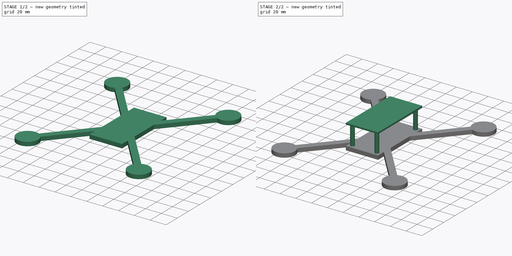
[diagram: build sequence overview — one tinted view per stage of 2, left to right]
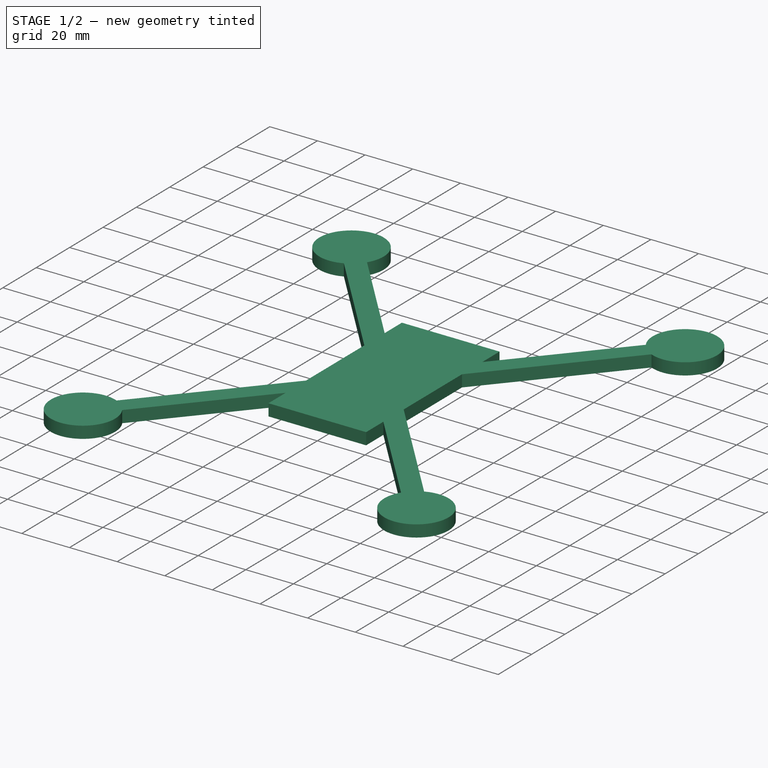
[diagram: stage 1 of 2 — iso view after this stage's code; geometry added in this stage tinted green]
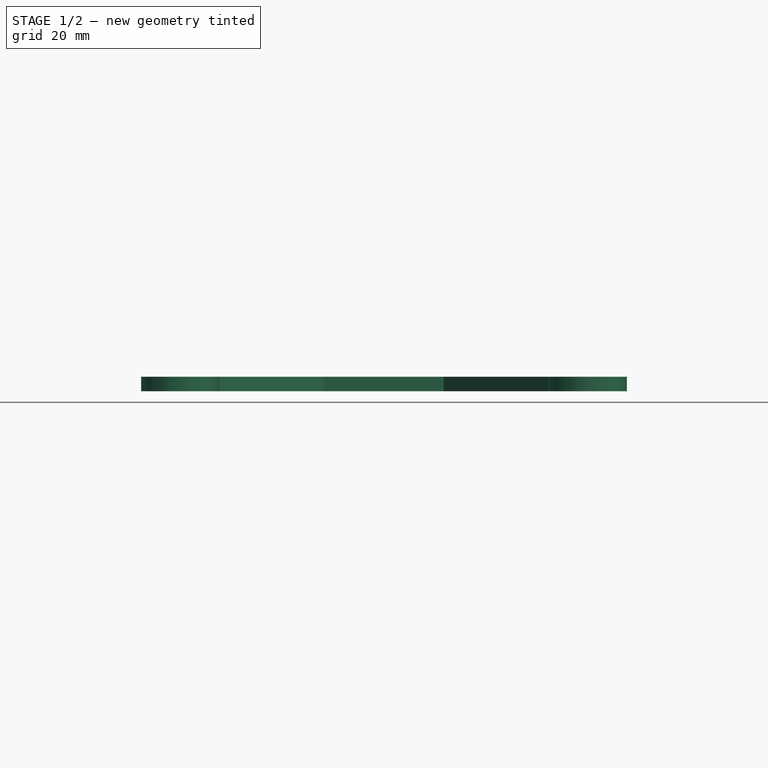
[diagram: stage 1 of 2 — front view after this stage's code; geometry added in this stage tinted green]
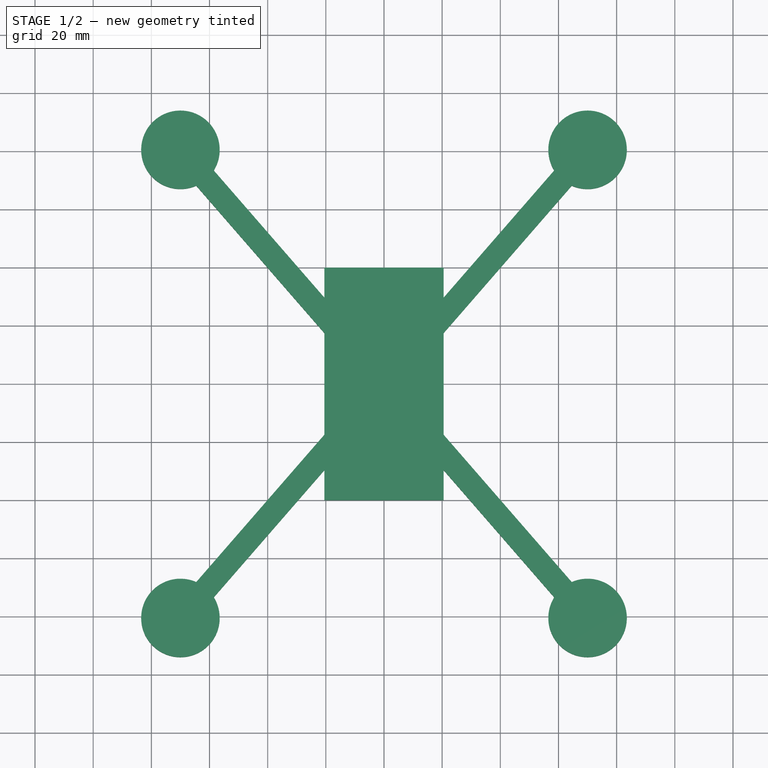
[diagram: stage 1 of 2 — top view after this stage's code; geometry added in this stage tinted green]
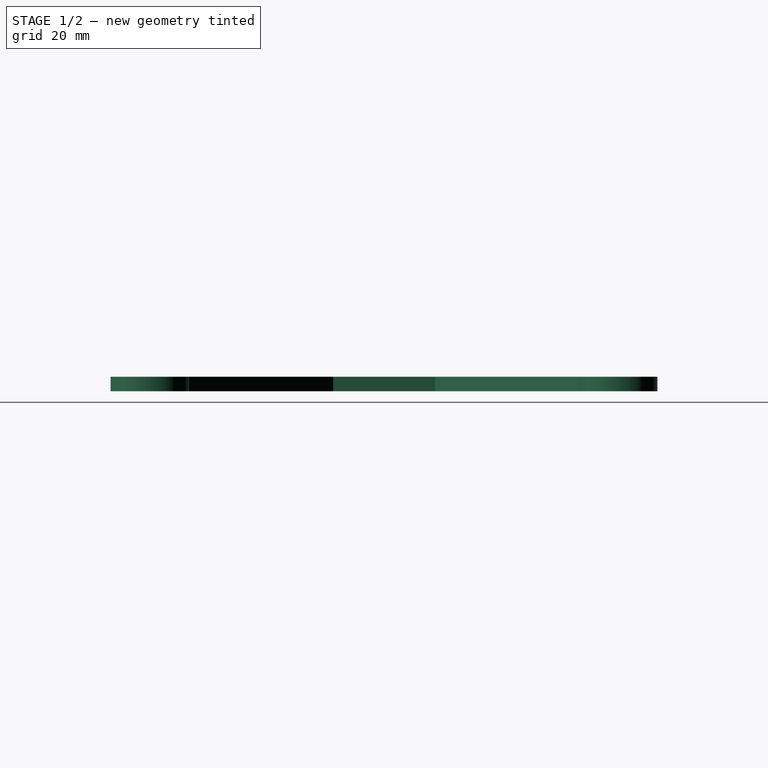
[diagram: stage 1 of 2 — right view after this stage's code; geometry added in this stage tinted green]
FCSTD DOCUMENT  (FreeCAD 0.18R16033 (Git))
Label: floss2_frame
License: All rights reserved
LicenseURL: http://en.wikipedia.org/wiki/All_rights_reserved
objects: Sketcher::SketchObject×4, PartDesign::Pad×4, Spreadsheet::Sheet×1, PartDesign::Body×1
note: 13 computed .brp shape members not serialized (recipe doc carries the construction recipe); baked Part::Feature solids carry a one-line shape summary decoded from their .brp

FEATURE [Sketcher::SketchObject] Sketch
  MapMode = 5
  Support = -> [XY_Plane]
  expr: Constraints[3] = Data.back_d
  expr: Constraints[0] = Data.front_d
  expr: Constraints[35] = Data.arm_w
  expr: Constraints[2] = Data.left_d
  expr: Constraints[7] = Data.motor_dia / 2
  sketch-geometry (20):
    g0: ArcOfCircle CenterX=-70 CenterY=80.5 CenterZ=0 NormalX=0 NormalY=0 NormalZ=1 AngleXU=0 Radius=13.5 StartAngle=5.72895 EndAngle=11.4105
    g1: ArcOfCircle CenterX=70 CenterY=80.5 CenterZ=0 NormalX=0 NormalY=0 NormalZ=1 AngleXU=0 Radius=13.5 StartAngle=4.29746 EndAngle=9.97902
    g2: ArcOfCircle CenterX=-70 CenterY=-80.5 CenterZ=0 NormalX=0 NormalY=0 NormalZ=1 AngleXU=0 Radius=13.5 StartAngle=1.15587 EndAngle=6.83743
    g3: ArcOfCircle CenterX=70 CenterY=-80.5 CenterZ=0 NormalX=0 NormalY=0 NormalZ=1 AngleXU=0 Radius=13.5 StartAngle=2.58735 EndAngle=8.26891
    g4: LineSegment StartX=5e-12 StartY=6.0959 StartZ=0 EndX=58.5209 EndY=73.395 EndZ=0
    g5: LineSegment StartX=64.5578 StartY=68.1456 StartZ=0 EndX=5.30078 EndY=2.0037e-12 EndZ=0
    g6: LineSegment StartX=5.30078 StartY=2.0037e-12 StartZ=0 EndX=64.5578 EndY=-68.1456 EndZ=0
    g7: LineSegment [constr] StartX=64.5578 StartY=-68.1456 StartZ=0 EndX=58.5209 EndY=-73.395 EndZ=0
    g8: LineSegment StartX=58.5209 StartY=-73.395 StartZ=0 EndX=0 EndY=-6.0959 EndZ=0
    g9: LineSegment StartX=0 StartY=-6.0959 StartZ=0 EndX=-58.5209 EndY=-73.395 EndZ=0
    g10: LineSegment StartX=-64.5578 StartY=-68.1456 StartZ=0 EndX=-5.30078 EndY=0 EndZ=0
    g11: LineSegment StartX=-5.30078 StartY=0 StartZ=0 EndX=-64.5578 EndY=68.1456 EndZ=0
    g12: LineSegment [constr] StartX=-64.5578 StartY=68.1456 StartZ=0 EndX=-58.5209 EndY=73.395 EndZ=0
    g13: LineSegment StartX=-58.5209 StartY=73.395 StartZ=0 EndX=5.0022e-12 EndY=6.0959 EndZ=0
    g14: LineSegment [constr] StartX=-70 StartY=80.5 StartZ=0 EndX=0 EndY=0 EndZ=0
    g15: LineSegment [constr] StartX=0 StartY=0 StartZ=0 EndX=70 EndY=80.5 EndZ=0
    g16: LineSegment [constr] StartX=70 StartY=-80.5 StartZ=0 EndX=0 EndY=0 EndZ=0
    g17: LineSegment [constr] StartX=-70 StartY=-80.5 StartZ=0 EndX=0 EndY=0 EndZ=0
    g18: LineSegment [constr] StartX=-64.5578 StartY=-68.1456 StartZ=0 EndX=-58.5209 EndY=-73.395 EndZ=0
    g19: LineSegment [constr] StartX=58.5209 StartY=73.395 StartZ=0 EndX=64.5578 EndY=68.1456 EndZ=0
  constraints (49):
    c: DistanceX(g0,g1) = 140
    c: Symmetric(g2,g3,g-2)
    c: DistanceY(g2,g0) = 161
    c: DistanceX(g2,g3) = 140
    c: Equal(g1,g0)
    c: Equal(g0,g2)
    c: Equal(g2,g3)
    c: Radius(g3) = 13.5
    c: Symmetric(g1,g3,g-1)
    c: Coincident(g5,g6)
    c: Coincident(g6,g7)
    c: Coincident(g8,g9)
    c: Coincident(g10,g11)
    c: Coincident(g11,g12)
    c: Coincident(g13,g4)
    c: Parallel(g13,g11)
    c: Parallel(g5,g4)
    c: Parallel(g10,g9)
    c: Parallel(g8,g6)
    c: Perpendicular(g13,g12)
    c: Perpendicular(g6,g7)
    c: Coincident(g14,g-1)
    c: Coincident(g15,g-1)
    c: Coincident(g-1,g16)
    c: Coincident(g-1,g17)
    c: Parallel(g14,g13)
    c: Parallel(g4,g15)
    c: Parallel(g10,g17)
    c: Parallel(g6,g16)
    c: Coincident(g17,g2)
    c: Coincident(g10,g2)
    c: Coincident(g9,g2)
    c: Coincident(g2,g18)
    c: Coincident(g18,g2)
    c: Perpendicular(g10,g18)
    c: Distance(g18) = 8
    c: Coincident(g1,g4)
    c: Coincident(g15,g1)
    c: Coincident(g1,g5)
    c: Coincident(g1,g19)
    c: Coincident(g19,g1)
    c: Perpendicular(g19,g4)
    c: Equal(g18,g19)
    c: Equal(g18,g7)
    c: Coincident(g13,g0)
    c: Coincident(g0,g11)
    c: Coincident(g14,g0)
    c: Equal(g12,g18)
    c: Equal(g14,g15)
FEATURE [Spreadsheet::Sheet] Spreadsheet  label="Data"
  cells = A1=front distance; B1(front_d)=140; A2=back distance; B2(back_d)=140; A3=left distance; B3(left_d)=161; A4=right distance; B4(right_d)=161; A5=arm width; B5(arm_w)=8; A6=motor diameter; B6(motor_dia)=27; A7=plate width; B7(plate_w)=5; A8=body width; B8(body_w)=41; A9=body height; B9(body_h)=80; A10=standoff dia; B10(standoff_dia)=5; A11=standoff height; B11(standoff_h)=24.5; A12=top plate thickness; B12(top_plate_thickness)=2; A13=standoff_width_distance; B13(standoff_w_d)=31; A14=standoff_length distance; B14(standoff_l_d)=70
FEATURE [PartDesign::Pad] Pad
  Length = 5
  Length2 = 100
  Profile = -> Sketch
  Type = 0
  expr: Length = Data.plate_w
FEATURE [Sketcher::SketchObject] Sketch001
  MapMode = 5
  Placement = pos=(0,0,5) rot=(0,0,1;0rad)
  Support = -> [Pad]
  expr: Constraints[11] = Data.body_h
  expr: Constraints[10] = Data.body_w
  sketch-geometry (4):
    g0: LineSegment StartX=-20.5 StartY=40 StartZ=0 EndX=20.5 EndY=40 EndZ=0
    g1: LineSegment StartX=20.5 StartY=40 StartZ=0 EndX=20.5 EndY=-40 EndZ=0
    g2: LineSegment StartX=20.5 StartY=-40 StartZ=0 EndX=-20.5 EndY=-40 EndZ=0
    g3: LineSegment StartX=-20.5 StartY=-40 StartZ=0 EndX=-20.5 EndY=40 EndZ=0
  constraints (12):
    c: Coincident(g0,g1)
    c: Coincident(g1,g2)
    c: Coincident(g2,g3)
    c: Coincident(g3,g0)
    c: Horizontal(g0)
    c: Horizontal(g2)
    c: Vertical(g1)
    c: Vertical(g3)
    c: Symmetric(g0,g0,g-2)
    c: Symmetric(g0,g1,g-1)
    c: DistanceX(g0,g0) = 41
    c: DistanceY(g1,g1) = 80
FEATURE [PartDesign::Pad] Pad001
  BaseFeature = -> Pad
  Length = 5
  Length2 = 100
  Profile = -> Sketch001
  Reversed = true
  Type = 0
  expr: Length = Data.plate_w
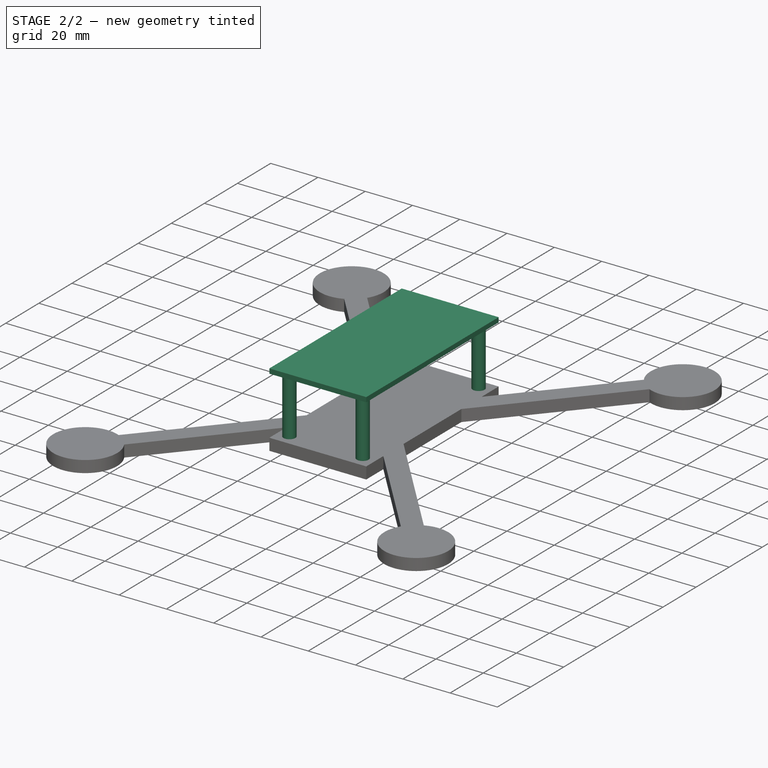
[diagram: stage 2 of 2 — iso view after this stage's code; geometry added in this stage tinted green]
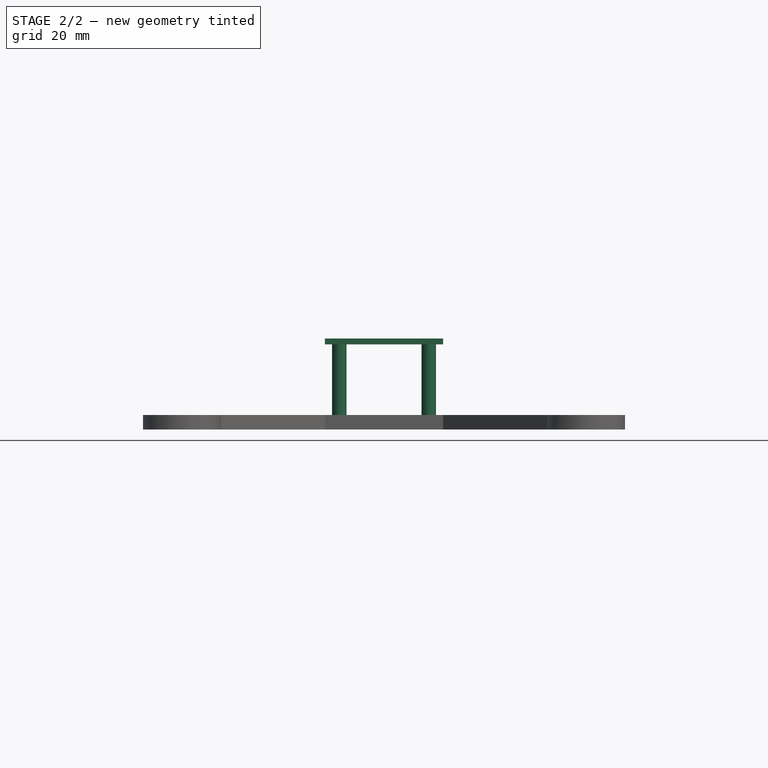
[diagram: stage 2 of 2 — front view after this stage's code; geometry added in this stage tinted green]
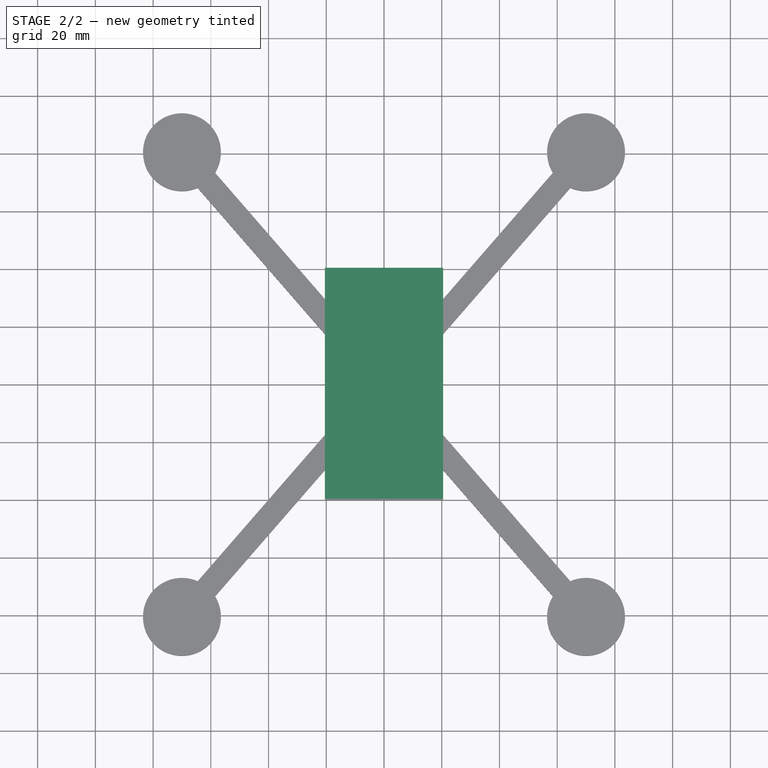
[diagram: stage 2 of 2 — top view after this stage's code; geometry added in this stage tinted green]
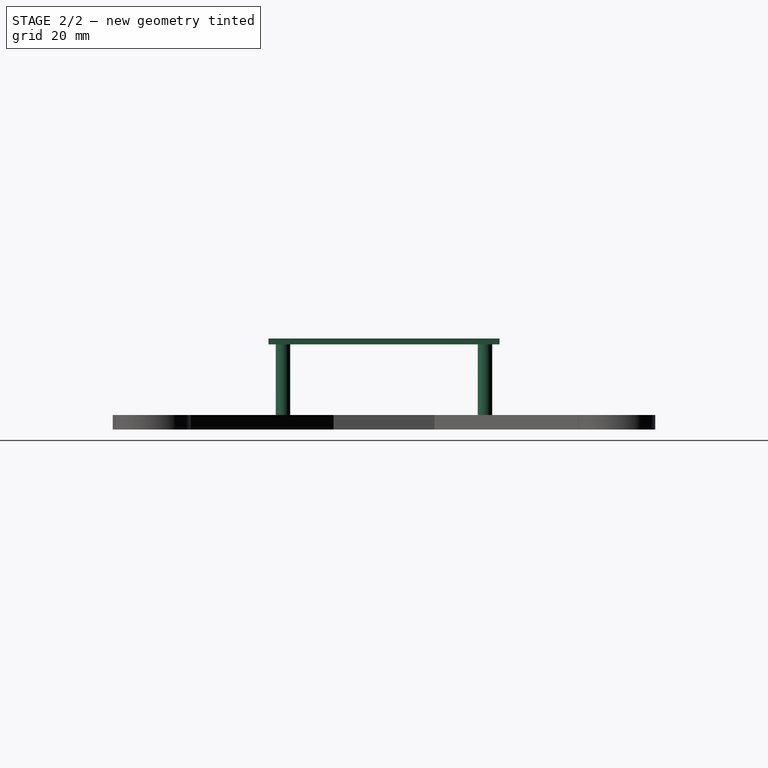
[diagram: stage 2 of 2 — right view after this stage's code; geometry added in this stage tinted green]
FEATURE [Sketcher::SketchObject] Sketch002
  MapMode = 5
  Placement = pos=(0,0,5) rot=(0,0,1;0rad)
  Support = -> [Pad001]
  expr: Constraints[15] = Data.standoff_l_d
  expr: Constraints[14] = Data.standoff_w_d
  expr: Constraints[6] = Data.standoff_dia / 2
  sketch-geometry (8):
    g0: LineSegment [constr] StartX=15.5 StartY=-35 StartZ=0 EndX=-15.5 EndY=-35 EndZ=0
    g1: LineSegment [constr] StartX=-15.5 StartY=-35 StartZ=0 EndX=-15.5 EndY=35 EndZ=0
    g2: LineSegment [constr] StartX=-15.5 StartY=35 StartZ=0 EndX=15.5 EndY=35 EndZ=0
    g3: LineSegment [constr] StartX=15.5 StartY=35 StartZ=0 EndX=15.5 EndY=-35 EndZ=0
    g4: Circle CenterX=-15.5 CenterY=35 CenterZ=0 NormalX=0 NormalY=0 NormalZ=1 AngleXU=0 Radius=2.5
    g5: Circle CenterX=15.5 CenterY=35 CenterZ=0 NormalX=0 NormalY=0 NormalZ=1 AngleXU=0 Radius=2.5
    g6: Circle CenterX=-15.5 CenterY=-35 CenterZ=0 NormalX=0 NormalY=0 NormalZ=1 AngleXU=0 Radius=2.5
    g7: Circle CenterX=15.5 CenterY=-35 CenterZ=0 NormalX=0 NormalY=0 NormalZ=1 AngleXU=0 Radius=2.5
  constraints (18):
    c: Coincident(g0,g1)
    c: Coincident(g1,g2)
    c: Coincident(g2,g3)
    c: Coincident(g3,g0)
    c: Horizontal(g0)
    c: Vertical(g3)
    c: Radius(g4) = 2.5
    c: Equal(g5,g4)
    c: Equal(g4,g7)
    c: Equal(g7,g6)
    c: Coincident(g7,g0)
    c: Coincident(g6,g0)
    c: Coincident(g5,g2)
    c: Coincident(g4,g1)
    c: DistanceX(g2,g2) = 31
    c: DistanceY(g3,g3) = 70
    c: Symmetric(g1,g2,g-2)
    c: Symmetric(g1,g0,g-1)
FEATURE [PartDesign::Pad] Pad002
  BaseFeature = -> Pad001
  Length = 24.5
  Length2 = 100
  Profile = -> Sketch002
  Type = 0
  expr: Length = Data.standoff_h
FEATURE [Sketcher::SketchObject] Sketch003
  MapMode = 5
  Placement = pos=(0,0,29.5) rot=(0,0,1;0rad)
  Support = -> [Pad002]
  expr: Constraints[7] = Data.body_h
  expr: Constraints[6] = Data.body_w
  sketch-geometry (4):
    g0: LineSegment StartX=-20.5 StartY=40 StartZ=0 EndX=20.5 EndY=40 EndZ=0
    g1: LineSegment StartX=20.5 StartY=40 StartZ=0 EndX=20.5 EndY=-40 EndZ=0
    g2: LineSegment StartX=20.5 StartY=-40 StartZ=0 EndX=-20.5 EndY=-40 EndZ=0
    g3: LineSegment StartX=-20.5 StartY=-40 StartZ=0 EndX=-20.5 EndY=40 EndZ=0
  constraints (10):
    c: Coincident(g0,g1)
    c: Coincident(g1,g2)
    c: Coincident(g2,g3)
    c: Coincident(g3,g0)
    c: Horizontal(g2)
    c: Vertical(g3)
    c: DistanceX(g0,g0) = 41
    c: DistanceY(g1,g1) = 80
    c: Symmetric(g0,g0,g-2)
    c: Symmetric(g0,g1,g-1)
FEATURE [PartDesign::Pad] Pad003
  BaseFeature = -> Pad002
  Length = 2
  Length2 = 100
  Profile = -> Sketch003
  Type = 0
  expr: Length = Data.top_plate_thickness
FEATURE [PartDesign::Body] Body
  Group = -> [Sketch,Pad,Sketch001,Pad001,Sketch002,Pad002,Sketch003,Pad003]
  Origin = -> Origin
  Tip = -> Pad003
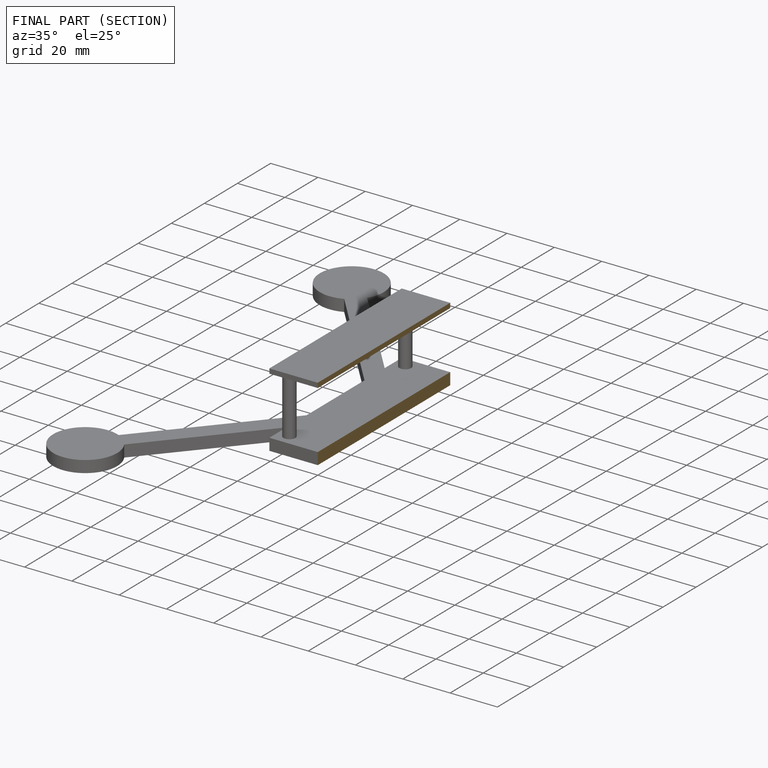
[diagram: finished part — half-section view (interior)]
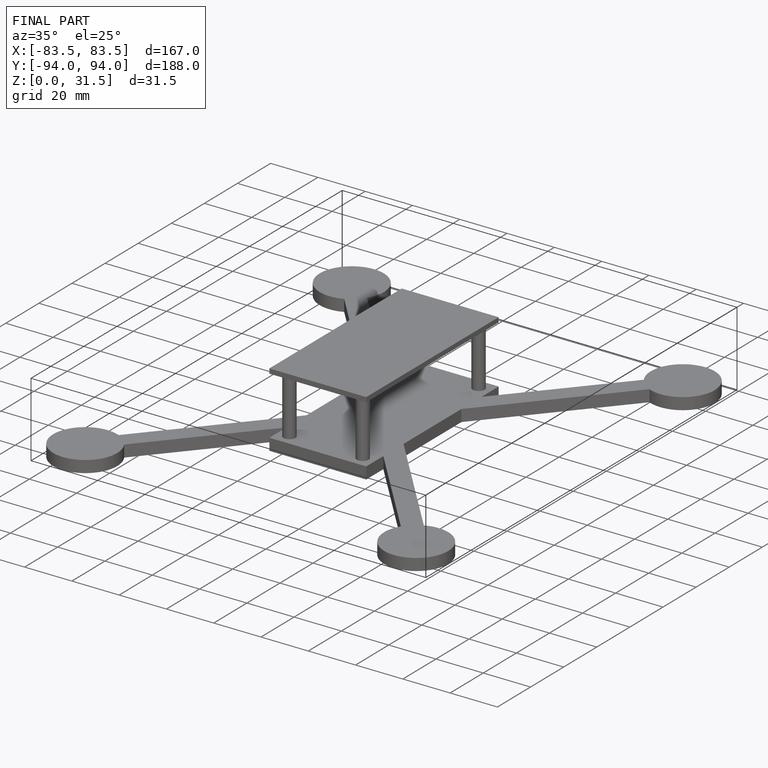
[diagram: finished part — iso view with bounding-box wireframe]
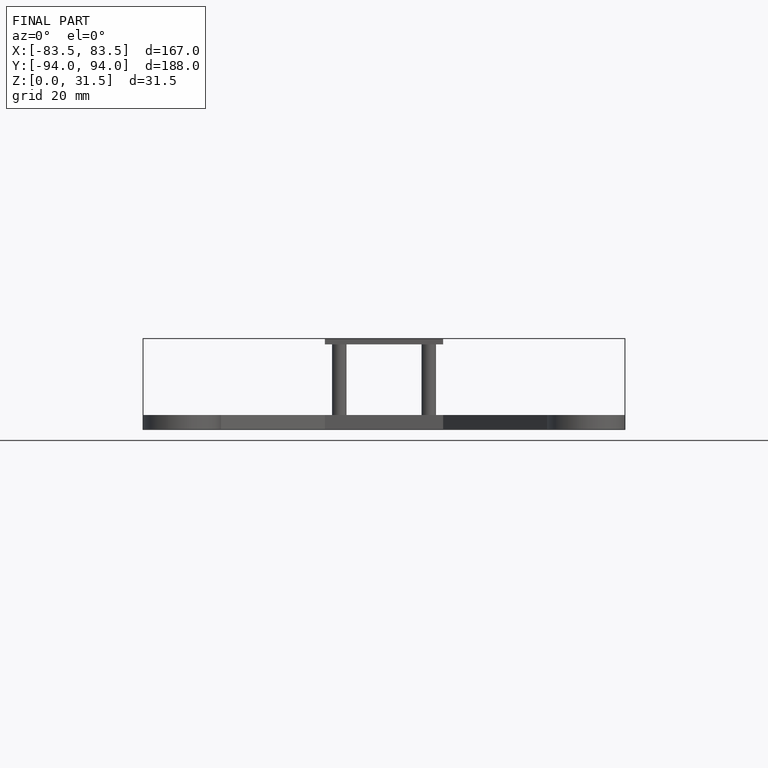
[diagram: finished part — front view with bounding-box wireframe]
